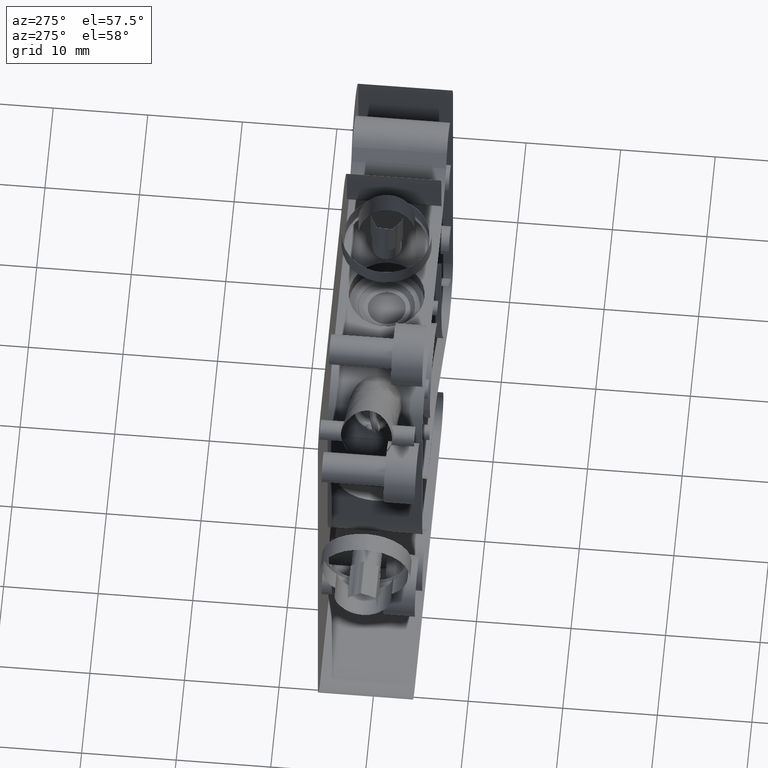
[diagram: clean part render]
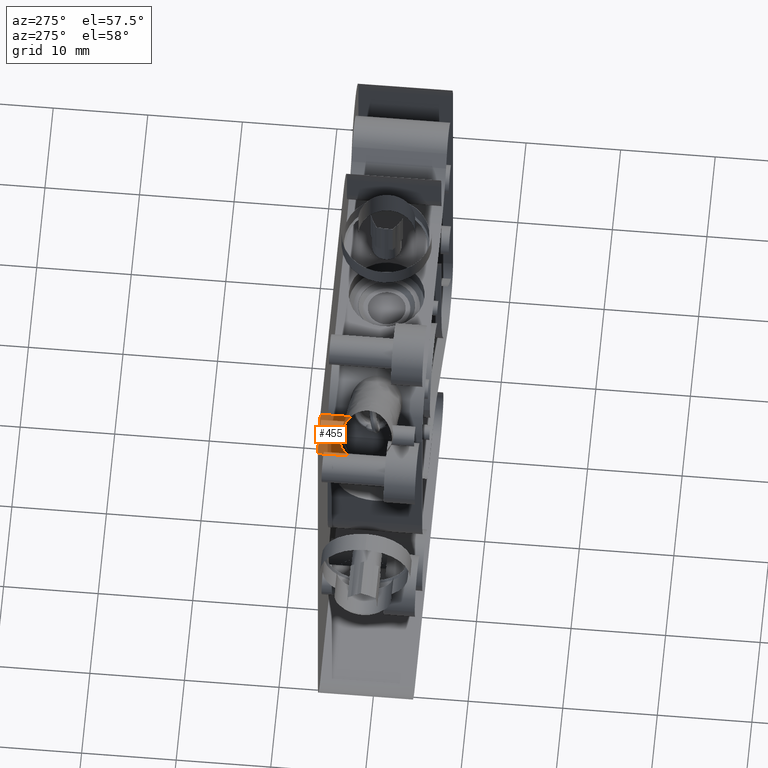
[diagram: same view with one face highlighted and labeled with its STEP entity id]
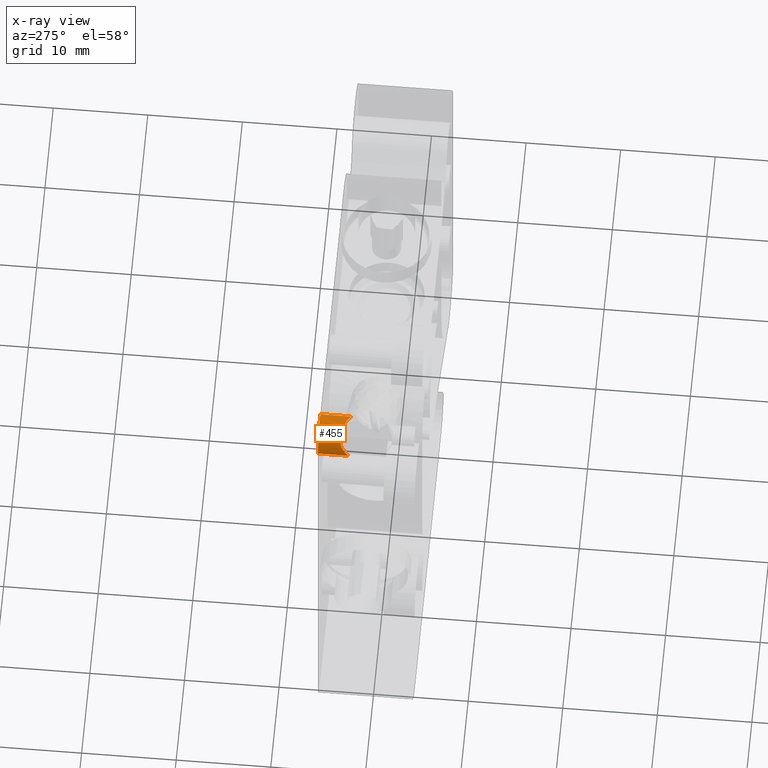
[diagram: x-ray of the same camera — body ghosted, the highlighted face saturated]
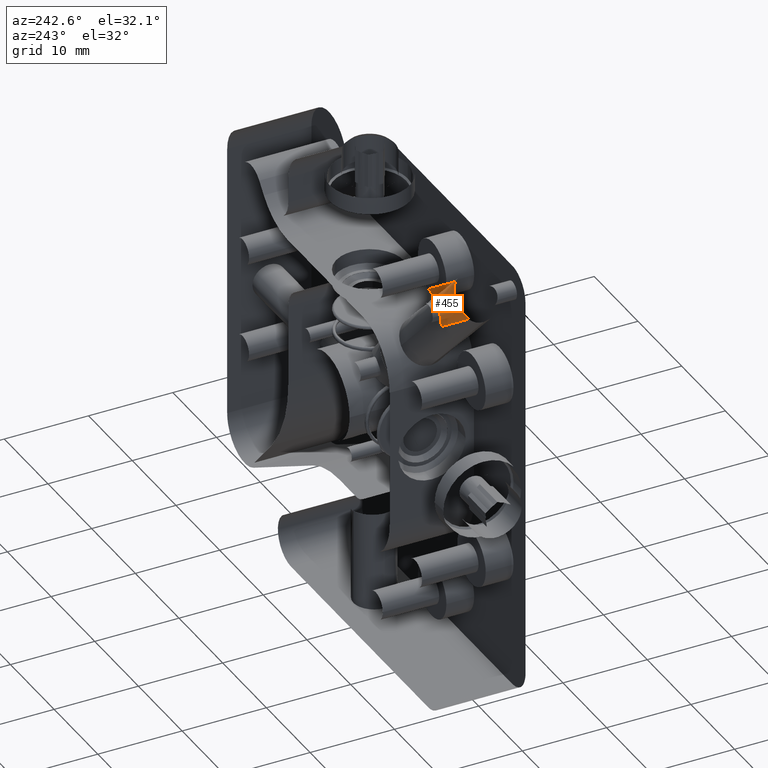
[diagram: same view with one face highlighted and labeled with its STEP entity id]
A machine part, auxiliary view. The second image highlights one B-rep face of the part: STEP entity #455.
The next image is the same camera in x-ray: the body ghosted, the highlighted face saturated — about 0% of this face is hidden behind the body in this view.
A second angle (auxiliary view) of the same face is appended — the face is thin or edge-on in the first view.
In plain terms, the highlighted face is a freeform B-spline surface patch.
Its self-contained STEP definition (entity closure, byte-faithful):
#455=ADVANCED_FACE('',(#736),#10426,.T.);
#736=FACE_OUTER_BOUND('',#1033,.T.);
#1033=EDGE_LOOP('',(#1979,#1980,#1981,#1982,#1983));
#1979=ORIENTED_EDGE('',*,*,#8709,.T.);
#1980=ORIENTED_EDGE('',*,*,#8694,.F.);
#1981=ORIENTED_EDGE('',*,*,#8710,.T.);
#1982=ORIENTED_EDGE('',*,*,#8711,.T.);
#1983=ORIENTED_EDGE('',*,*,#8712,.T.);
#3476=PCURVE('',#10423,#4999);
#3502=PCURVE('',#10426,#5025);
#3503=PCURVE('',#10426,#5026);
#3504=PCURVE('',#10426,#5027);
#3505=PCURVE('',#10426,#5028);
#3506=PCURVE('',#10426,#5029);
#3512=PCURVE('',#10284,#5035);
#3785=PCURVE('',#10307,#5308);
#4999=DEFINITIONAL_REPRESENTATION('',(#6660),#38234);
#5025=DEFINITIONAL_REPRESENTATION('',(#6699),#38234);
#5026=DEFINITIONAL_REPRESENTATION('',(#6700),#38234);
#5027=DEFINITIONAL_REPRESENTATION('',(#6702),#38234);
#5028=DEFINITIONAL_REPRESENTATION('',(#6703),#38234);
#5029=DEFINITIONAL_REPRESENTATION('',(#6705),#38234);
#5035=DEFINITIONAL_REPRESENTATION('',(#6713),#38234);
#5308=DEFINITIONAL_REPRESENTATION('',(#9474),#38234);
#6659=B_SPLINE_CURVE_WITH_KNOTS('',3,(#17209,#17210,#17211,#17212,#17213,
#17214,#17215,#17216),.UNSPECIFIED.,.F.,.F.,(4,2,2,4),(-0.72091083905078,
-0.594839621376725,-0.531395392765377,-0.467108925178459),.UNSPECIFIED.);
#6660=B_SPLINE_CURVE_WITH_KNOTS('',3,(#17217,#17218,#17219,#17220,#17221,
#17222),.UNSPECIFIED.,.F.,.F.,(4,2,4),(-0.72091083905078,-0.596067874030365,
-0.467108925178459),.UNSPECIFIED.);
#6698=B_SPLINE_CURVE_WITH_KNOTS('',3,(#17483,#17484,#17485,#17486,#17487,
#17488,#17489,#17490),.UNSPECIFIED.,.F.,.F.,(4,2,2,4),(0.213323754411189,
0.339375299383063,0.402807152089569,0.467090959612026),.UNSPECIFIED.);
#6699=B_SPLINE_CURVE_WITH_KNOTS('',3,(#17491,#17492,#17493,#17494,#17495,
#17496,#17497,#17498),.UNSPECIFIED.,.F.,.F.,(4,2,2,4),(0.213323754411189,
0.344025942484054,0.40790162467753,0.467090959612026),.UNSPECIFIED.);
#6700=B_SPLINE_CURVE_WITH_KNOTS('',3,(#17499,#17500,#17501,#17502,#17503,
#17504,#17505,#17506),.UNSPECIFIED.,.F.,.F.,(4,2,2,4),(-0.72091083905078,
-0.590190598860506,-0.526305607007358,-0.467108925178459),.UNSPECIFIED.);
#6701=B_SPLINE_CURVE_WITH_KNOTS('',1,(#17507,#17508),.UNSPECIFIED.,.F.,
 .F.,(2,2),(-3.2502177992676,0.),.UNSPECIFIED.);
#6702=B_SPLINE_CURVE_WITH_KNOTS('',1,(#17509,#17510),.UNSPECIFIED.,.F.,
 .F.,(2,2),(-3.2502177992676,0.),.UNSPECIFIED.);
#6703=B_SPLINE_CURVE_WITH_KNOTS('',1,(#17514,#17515),.UNSPECIFIED.,.F.,
 .F.,(2,2),(0.,4.71238898038469),.UNSPECIFIED.);
#6704=B_SPLINE_CURVE_WITH_KNOTS('',1,(#17516,#17517),.UNSPECIFIED.,.F.,
 .F.,(2,2),(0.,3.24978224627699),.UNSPECIFIED.);
#6705=B_SPLINE_CURVE_WITH_KNOTS('',1,(#17518,#17519),.UNSPECIFIED.,.F.,
 .F.,(2,2),(0.,3.24978224627699),.UNSPECIFIED.);
#6713=B_SPLINE_CURVE_WITH_KNOTS('',1,(#17539,#17540),.UNSPECIFIED.,.F.,
 .F.,(2,2),(-3.2502177992676,0.),.UNSPECIFIED.);
#7890=SURFACE_CURVE('',#6659,(#3476,#3503),.PCURVE_S1.);
#7905=SURFACE_CURVE('',#6698,(#3502),.PCURVE_S1.);
#7906=SURFACE_CURVE('',#6701,(#3504,#3512),.PCURVE_S1.);
#7907=SURFACE_CURVE('',#9363,(#3505,#3785),.PCURVE_S1.);
#7908=SURFACE_CURVE('',#6704,(#3506),.PCURVE_S1.);
#8694=EDGE_CURVE('',#9998,#9999,#7890,.T.);
#8709=EDGE_CURVE('',#10002,#9999,#7905,.T.);
#8710=EDGE_CURVE('',#9998,#10006,#7906,.T.);
#8711=EDGE_CURVE('',#10006,#10007,#7907,.T.);
#8712=EDGE_CURVE('',#10007,#10002,#7908,.T.);
#9363=(
BOUNDED_CURVE()
B_SPLINE_CURVE(2,(#17511,#17512,#17513),.UNSPECIFIED.,.F.,.F.)
B_SPLINE_CURVE_WITH_KNOTS((3,3),(0.,4.71238898038469),.UNSPECIFIED.)
CURVE()
GEOMETRIC_REPRESENTATION_ITEM()
RATIONAL_B_SPLINE_CURVE((1.,0.707106781186543,1.))
REPRESENTATION_ITEM('')
);
#9474=(
BOUNDED_CURVE()
B_SPLINE_CURVE(2,(#18954,#18955,#18956),.UNSPECIFIED.,.F.,.F.)
B_SPLINE_CURVE_WITH_KNOTS((3,3),(0.,4.71238898038469),.UNSPECIFIED.)
CURVE()
GEOMETRIC_REPRESENTATION_ITEM()
RATIONAL_B_SPLINE_CURVE((1.,0.707106781186548,1.))
REPRESENTATION_ITEM('')
);
#9998=VERTEX_POINT('',#13558);
#9999=VERTEX_POINT('',#13559);
#10002=VERTEX_POINT('',#13562);
#10006=VERTEX_POINT('',#13566);
#10007=VERTEX_POINT('',#13567);
#10284=B_SPLINE_SURFACE_WITH_KNOTS('',1,1,((#12660,#12661),(#12662,#12663)),
 .UNSPECIFIED.,.F.,.F.,.F.,(2,2),(2,2),(-1.12,11.12),(-2.92000000000002,
30.92),.UNSPECIFIED.);
#10307=B_SPLINE_SURFACE_WITH_KNOTS('',1,1,((#13256,#13257),(#13258,#13259)),
 .UNSPECIFIED.,.F.,.F.,.F.,(2,2),(2,2),(-31.1921061117909,31.4478938882091),
(-31.7014055422227,27.3385944577773),.UNSPECIFIED.);
#10423=(
BOUNDED_SURFACE()
B_SPLINE_SURFACE(1,2,((#12588,#12589,#12590,#12591,#12592,#12593,#12594,
#12595,#12596),(#12597,#12598,#12599,#12600,#12601,#12602,#12603,#12604,
#12605)),.UNSPECIFIED.,.F.,.F.,.F.)
B_SPLINE_SURFACE_WITH_KNOTS((2,2),(3,2,2,2,3),(0.,27.4477942498307),(0.,
1.5707963267949,3.14159265358979,4.71238898038469,6.28318530717959),
 .UNSPECIFIED.)
GEOMETRIC_REPRESENTATION_ITEM()
RATIONAL_B_SPLINE_SURFACE(((1.,0.707106781186548,1.,0.707106781186548,1.,
0.707106781186548,1.,0.707106781186548,1.),(1.,0.707106781186548,1.,0.707106781186548,
1.,0.707106781186548,1.,0.707106781186548,1.)))
REPRESENTATION_ITEM('')
SURFACE()
);
#10426=(
BOUNDED_SURFACE()
B_SPLINE_SURFACE(2,1,((#12642,#12643),(#12644,#12645),(#12646,#12647),(#12648,
#12649),(#12650,#12651),(#12652,#12653),(#12654,#12655),(#12656,#12657),
(#12658,#12659)),.UNSPECIFIED.,.T.,.F.,.F.)
B_SPLINE_SURFACE_WITH_KNOTS((3,2,2,2,3),(2,2),(0.,1.5707963267949,3.14159265358979,
4.71238898038469,6.28318530717959),(0.,4.14026135912113),.UNSPECIFIED.)
GEOMETRIC_REPRESENTATION_ITEM()
RATIONAL_B_SPLINE_SURFACE(((1.,1.),(0.707106781186548,0.707106781186548),
(1.,1.),(0.707106781186548,0.707106781186548),(1.,1.),(0.707106781186548,
0.707106781186548),(1.,1.),(0.707106781186548,0.707106781186548),(1.,1.)))
REPRESENTATION_ITEM('')
SURFACE()
);
#12588=CARTESIAN_POINT('',(-21.3832498208714,40.8331285187102,49.5367132204772));
#12589=CARTESIAN_POINT('',(-21.3832498208714,40.8331285187102,52.2867132204772));
#12590=CARTESIAN_POINT('',(-19.4387061726084,42.7776721669732,52.2867132204772));
#12591=CARTESIAN_POINT('',(-17.4941625243454,44.7222158152362,52.2867132204772));
#12592=CARTESIAN_POINT('',(-17.4941625243454,44.7222158152362,49.5367132204772));
#12593=CARTESIAN_POINT('',(-17.4941625243454,44.7222158152362,46.7867132204772));
#12594=CARTESIAN_POINT('',(-19.4387061726084,42.7776721669732,46.7867132204772));
#12595=CARTESIAN_POINT('',(-21.3832498208714,40.8331285187102,46.7867132204772));
#12596=CARTESIAN_POINT('',(-21.3832498208714,40.8331285187102,49.5367132204772));
#12597=CARTESIAN_POINT('',(-40.7917712635399,60.2416499613786,49.5367132204772));
#12598=CARTESIAN_POINT('',(-40.7917712635398,60.2416499613787,52.2867132204772));
#12599=CARTESIAN_POINT('',(-38.8472276152769,62.1861936096416,52.2867132204771));
#12600=CARTESIAN_POINT('',(-36.9026839670139,64.1307372579046,52.2867132204771));
#12601=CARTESIAN_POINT('',(-36.9026839670139,64.1307372579046,49.5367132204772));
#12602=CARTESIAN_POINT('',(-36.902683967014,64.1307372579046,46.7867132204772));
#12603=CARTESIAN_POINT('',(-38.8472276152769,62.1861936096416,46.7867132204772));
#12604=CARTESIAN_POINT('',(-40.7917712635399,60.2416499613786,46.7867132204773));
#12605=CARTESIAN_POINT('',(-40.7917712635399,60.2416499613786,49.5367132204772));
#12642=CARTESIAN_POINT('',(-31.1297237919326,57.4689438588719,44.0916914405504));
#12643=CARTESIAN_POINT('',(-31.1297237919326,57.4689438588719,48.2319527996716));
#12644=CARTESIAN_POINT('',(-31.1297237919326,60.4689438588719,44.0916914405504));
#12645=CARTESIAN_POINT('',(-31.1297237919326,60.4689438588719,48.2319527996716));
#12646=CARTESIAN_POINT('',(-34.1297237919326,60.4689438588719,44.0916914405504));
#12647=CARTESIAN_POINT('',(-34.1297237919326,60.4689438588719,48.2319527996716));
#12648=CARTESIAN_POINT('',(-37.1297237919326,60.4689438588719,44.0916914405504));
#12649=CARTESIAN_POINT('',(-37.1297237919326,60.4689438588719,48.2319527996716));
#12650=CARTESIAN_POINT('',(-37.1297237919326,57.4689438588719,44.0916914405504));
#12651=CARTESIAN_POINT('',(-37.1297237919326,57.4689438588719,48.2319527996716));
#12652=CARTESIAN_POINT('',(-37.1297237919326,54.4689438588719,44.0916914405504));
#12653=CARTESIAN_POINT('',(-37.1297237919326,54.4689438588719,48.2319527996716));
#12654=CARTESIAN_POINT('',(-34.1297237919326,54.4689438588719,44.0916914405504));
#12655=CARTESIAN_POINT('',(-34.1297237919326,54.4689438588719,48.2319527996716));
#12656=CARTESIAN_POINT('',(-31.1297237919326,54.4689438588719,44.0916914405504));
#12657=CARTESIAN_POINT('',(-31.1297237919326,54.4689438588719,48.2319527996716));
#12658=CARTESIAN_POINT('',(-31.1297237919326,57.4689438588719,44.0916914405504));
#12659=CARTESIAN_POINT('',(-31.1297237919326,57.4689438588719,48.2319527996716));
#12660=CARTESIAN_POINT('',(-37.0497237919326,60.4689438588719,43.4167132204772));
#12661=CARTESIAN_POINT('',(-3.20972379193263,60.4689438588719,43.4167132204772));
#12662=CARTESIAN_POINT('',(-37.0497237919326,60.4689438588719,55.6567132204772));
#12663=CARTESIAN_POINT('',(-3.20972379193262,60.4689438588719,55.6567132204772));
#13256=CARTESIAN_POINT('',(-42.1497237919326,3.1489438588719,44.5367132204772));
#13257=CARTESIAN_POINT('',(16.8902762080674,3.1489438588719,44.5367132204771));
#13258=CARTESIAN_POINT('',(-42.1497237919326,65.7889438588719,44.5367132204773));
#13259=CARTESIAN_POINT('',(16.8902762080674,65.7889438588719,44.5367132204772));
#13558=CARTESIAN_POINT('',(-34.1297237919326,60.4689438588719,47.7869310197448));
#13559=CARTESIAN_POINT('',(-36.251107651734,59.590200682386,46.7867132234115));
#13562=CARTESIAN_POINT('',(-37.1297237919326,57.4689438588719,47.7864954667542));
#13566=CARTESIAN_POINT('',(-34.1297237919326,60.4689438588719,44.5367132204772));
#13567=CARTESIAN_POINT('',(-37.1297237919326,57.4689438588719,44.5367132204772));
#17209=CARTESIAN_POINT('',(-34.1297237919326,60.4689438588719,47.7869310197448));
#17210=CARTESIAN_POINT('',(-34.3715276599608,60.4689438588719,47.5796272080159));
#17211=CARTESIAN_POINT('',(-34.6464975576194,60.4448877446734,47.3758815284258));
#17212=CARTESIAN_POINT('',(-35.1525334830013,60.2947332253466,47.093535266597));
#17213=CARTESIAN_POINT('',(-35.3364067232947,60.226029508822,47.001654907405));
#17214=CARTESIAN_POINT('',(-35.7622128969932,59.9976043529846,46.8495774764178));
#17215=CARTESIAN_POINT('',(-35.997144085208,59.8441642527158,46.7867366841781));
#17216=CARTESIAN_POINT('',(-36.251107651734,59.590200682386,46.7867132234115));
#17217=CARTESIAN_POINT('',(22.8977363623103,3.83616767459175));
#17218=CARTESIAN_POINT('',(23.0769747696491,3.93350467086111));
#17219=CARTESIAN_POINT('',(23.2533054656444,4.03262922289834));
#17220=CARTESIAN_POINT('',(23.5857794860411,4.28455092303712));
#17221=CARTESIAN_POINT('',(23.7764160192749,4.4665075997231));
#17222=CARTESIAN_POINT('',(23.7764160147162,4.71237083970663));
#17483=CARTESIAN_POINT('',(-37.1297237919326,57.4689438588719,47.7864954667542));
#17484=CARTESIAN_POINT('',(-37.1297237919326,57.710761769256,47.5792663118935));
#17485=CARTESIAN_POINT('',(-37.1056631426151,57.9857274118504,47.3755943150604));
#17486=CARTESIAN_POINT('',(-36.9555231151537,58.4917227605067,47.0933645076947));
#17487=CARTESIAN_POINT('',(-36.8868273556715,58.6755769342658,47.0015260438208));
#17488=CARTESIAN_POINT('',(-36.6584410435955,59.1013438398341,46.8495184398211));
#17489=CARTESIAN_POINT('',(-36.5050034676825,59.3362744590746,46.7867132204772));
#17490=CARTESIAN_POINT('',(-36.251107651734,59.590200682386,46.7867132234115));
#17491=CARTESIAN_POINT('',(3.14159265358979,3.69480402620376));
#17492=CARTESIAN_POINT('',(3.05187792467366,3.48714896697839));
#17493=CARTESIAN_POINT('',(2.95617600735674,3.28459644155582));
#17494=CARTESIAN_POINT('',(2.77568180124724,2.99852542848827));
#17495=CARTESIAN_POINT('',(2.7136968503027,2.90937863083001));
#17496=CARTESIAN_POINT('',(2.55809878996953,2.75902389523926));
#17497=CARTESIAN_POINT('',(2.46999060668683,2.69502177991927));
#17498=CARTESIAN_POINT('',(2.35622287768658,2.69502178286102));
#17499=CARTESIAN_POINT('',(1.5707963267949,3.69523957919436));
#17500=CARTESIAN_POINT('',(1.66050465985658,3.48751245623224));
#17501=CARTESIAN_POINT('',(1.75620654160506,3.28489042835378));
#17502=CARTESIAN_POINT('',(1.93670743149388,2.99871100360104));
#17503=CARTESIAN_POINT('',(1.99869478777764,2.90952643818985));
#17504=CARTESIAN_POINT('',(2.15430391713392,2.75909791714522));
#17505=CARTESIAN_POINT('',(2.24241985012166,2.69504530600036));
#17506=CARTESIAN_POINT('',(2.35622287768658,2.69502178286102));
#17507=CARTESIAN_POINT('',(-34.1297237919326,60.4689438588719,47.7869310197448));
#17508=CARTESIAN_POINT('',(-34.1297237919326,60.4689438588719,44.5367132204772));
#17509=CARTESIAN_POINT('',(1.5707963267949,3.69523957919436));
#17510=CARTESIAN_POINT('',(1.5707963267949,0.445021779926769));
#17511=CARTESIAN_POINT('',(-34.1297237919326,60.4689438588719,44.5367132204772));
#17512=CARTESIAN_POINT('',(-37.1297237919326,60.4689438588719,44.5367132204772));
#17513=CARTESIAN_POINT('',(-37.1297237919326,57.4689438588719,44.5367132204772));
#17514=CARTESIAN_POINT('',(1.5707963267949,0.445021779926769));
#17515=CARTESIAN_POINT('',(3.14159265358979,0.445021779926769));
#17516=CARTESIAN_POINT('',(-37.1297237919326,57.4689438588719,44.5367132204772));
#17517=CARTESIAN_POINT('',(-37.1297237919326,57.4689438588719,47.7864954667542));
#17518=CARTESIAN_POINT('',(3.14159265358979,0.445021779926769));
#17519=CARTESIAN_POINT('',(3.14159265358979,3.69480402620376));
#17539=CARTESIAN_POINT('',(3.25021779926761,-1.0166661024728E-14));
#17540=CARTESIAN_POINT('',(0.,0.));
#18954=CARTESIAN_POINT('',(26.1278938882091,-23.6814055422227));
#18955=CARTESIAN_POINT('',(26.1278938882091,-26.6814055422227));
#18956=CARTESIAN_POINT('',(23.1278938882091,-26.6814055422227));
#38234=(
GEOMETRIC_REPRESENTATION_CONTEXT(2)
PARAMETRIC_REPRESENTATION_CONTEXT()
REPRESENTATION_CONTEXT('pspace','')
);